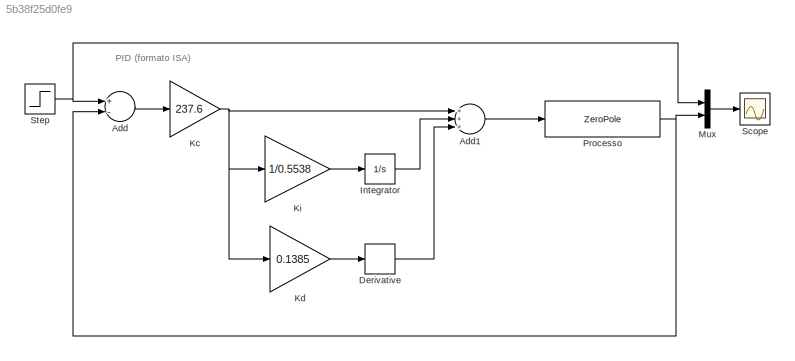
MODEL slx_5b38f25d0fe9
KIND model
CONFIG AbsTol = auto
CONFIG EnableMultiTasking = off
CONFIG FixedStep = auto
CONFIG MaxStep = auto
CONFIG MinStep = auto
CONFIG RelTol = 1e-3
CONFIG SampleTimeConstraint = Unconstrained
CONFIG Solver = ode45
CONFIG SolverName = ode45
CONFIG StartTime = 0.0
CONFIG StopTime = 7
BLOCK [Sum] Add
  InputSameDT = off
  Inputs = +-
  OutDataTypeStr = Inherit: Inherit via internal rule
  Ports = [2, 1]
  SaturateOnIntegerOverflow = off
BLOCK [Sum] Add1
  InputSameDT = off
  Inputs = +++
  OutDataTypeStr = Inherit: Inherit via internal rule
  Ports = [3, 1]
  SaturateOnIntegerOverflow = off
BLOCK [Derivative] Derivative
BLOCK [Integrator] Integrator
  Ports = [1, 1]
BLOCK [Gain] Kc
  Gain = 237.6
  OutDataTypeStr = Inherit: Inherit via internal rule
  ParamDataTypeStr = Inherit: Inherit via internal rule
  SaturateOnIntegerOverflow = off
BLOCK [Gain] Kd
  Gain = 0.1385
  OutDataTypeStr = Inherit: Inherit via internal rule
  ParamDataTypeStr = Inherit: Inherit via internal rule
  SaturateOnIntegerOverflow = off
BLOCK [Gain] Ki
  Gain = 1/0.5538
  OutDataTypeStr = Inherit: Inherit via internal rule
  ParamDataTypeStr = Inherit: Inherit via internal rule
  SaturateOnIntegerOverflow = off
BLOCK [Mux] Mux
  DisplayOption = bar
  Inputs = 2
  Ports = [2, 1]
BLOCK [ZeroPole] Processo
  Poles = [-1 -2 -10]
  Zeros = [ ]
BLOCK [Scope] Scope
  Floating = off
  NumInputPorts = 1
  Ports = [1]
  ScopeSpecificationString = Simulink.scopes.TimeScopeBlockCfg('CurrentConfiguration', extmgr.ConfigurationSet(extmgr.Configuration('Core','General UI',true,'FigureColor',[1 1 1]),extmgr.Configuration('Core','Source UI',true),extmgr.Configuration('Sources','WiredSimulink',true),extmgr.Configuration('Visuals','Time Domain',true,'SerializedDisplays',{struct('MinYLimReal','-0.20462','MaxYLimReal','1.84161','YLabelReal','','MinYL...<+1725ch>
BLOCK [Step] Step
  SampleTime = 0
ANNOTATION (root): PID (formato ISA)
LINE Add1:1 -> Processo:1
LINE Add:1 -> Kc:1
LINE Derivative:1 -> Add1:3
LINE Integrator:1 -> Add1:2
NET Kc:1 -> Add1:1, Kd:1, Ki:1
LINE Kd:1 -> Derivative:1
LINE Ki:1 -> Integrator:1
LINE Mux:1 -> Scope:1
NET Processo:1 -> Add:2, Mux:2
NET Step:1 -> Add:1, Mux:1
note: NET lines group one-source signal fan-out (src -> all destinations, sorted); 1:1 wires keep LINE
